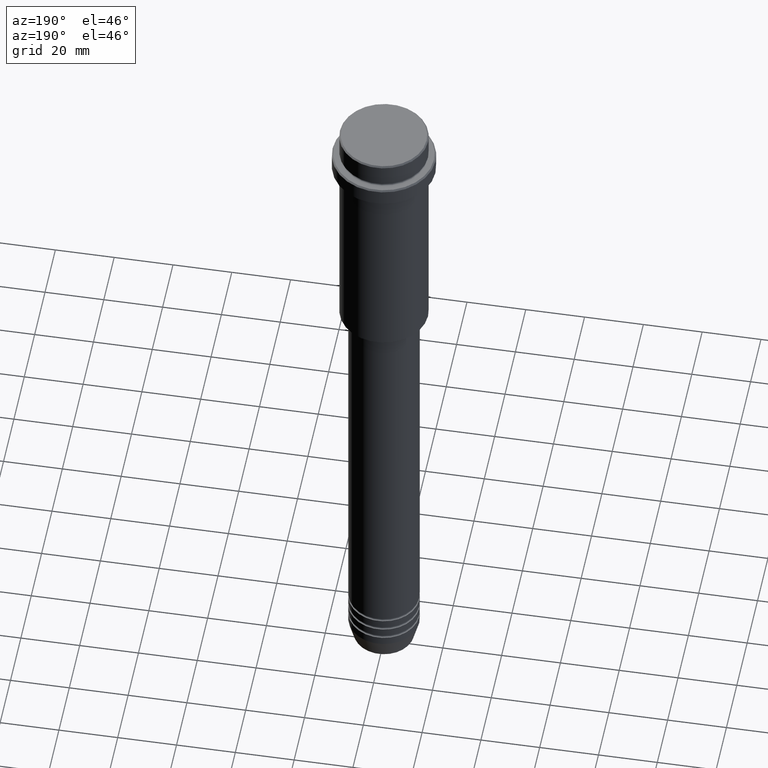
[diagram: clean part render]
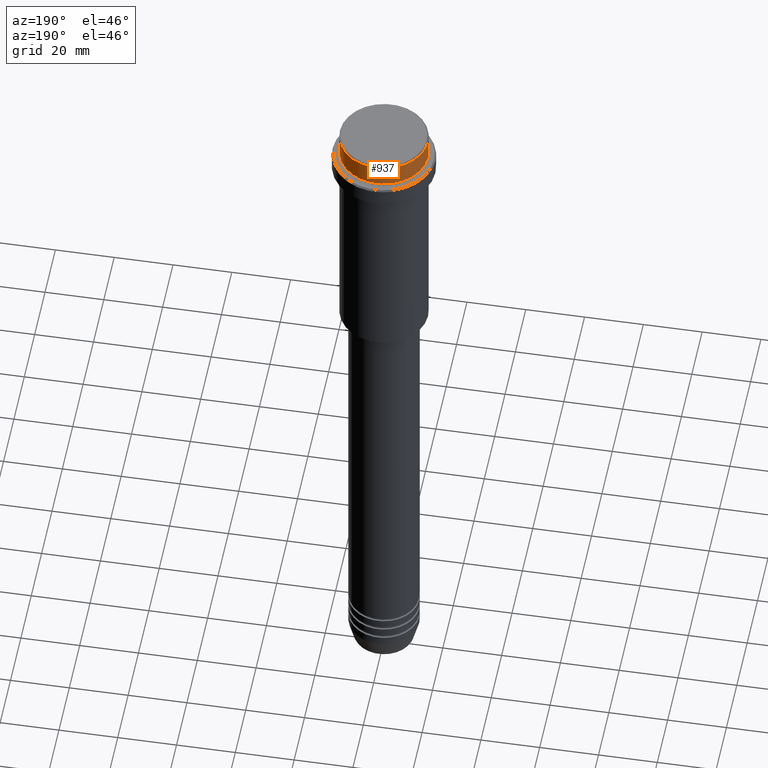
[diagram: same view with one face highlighted and labeled with its STEP entity id]
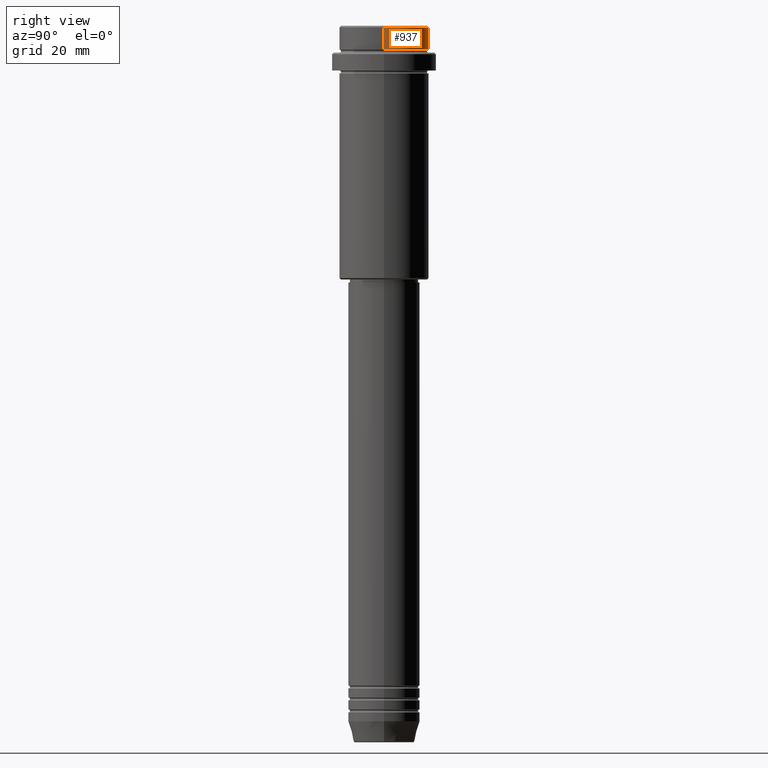
[diagram: same view with one face highlighted and labeled with its STEP entity id]
A machine part, auxiliary view. The second image highlights one B-rep face of the part: STEP entity #937.
A second angle (right view) of the same face is appended — the face is thin or edge-on in the first view.
In plain terms, the highlighted cylindrical surface (partial cylindrical patch) has radius 15 mm, axis along (-0, -0, 1).
Its self-contained STEP definition (entity closure, byte-faithful):
#15 = CIRCLE ( 'NONE', #422, 15.00000000000000000 ) ;
#21 = VERTEX_POINT ( 'NONE', #595 ) ;
#101 = CARTESIAN_POINT ( 'NONE',  ( 0.000000000000000000, 0.000000000000000000, -0.4999999999999831246 ) ) ;
#124 = DIRECTION ( 'NONE',  ( 1.000000000000000000, 0.000000000000000000, 0.000000000000000000 ) ) ;
#176 = CYLINDRICAL_SURFACE ( 'NONE', #811, 15.00000000000000000 ) ;
#230 = VERTEX_POINT ( 'NONE', #461 ) ;
#314 = LINE ( 'NONE', #750, #815 ) ;
#373 = CARTESIAN_POINT ( 'NONE',  ( 0.000000000000000000, 0.000000000000000000, 0.000000000000000000 ) ) ;
#382 = DIRECTION ( 'NONE',  ( 1.000000000000000000, 0.000000000000000000, 0.000000000000000000 ) ) ;
#391 = ORIENTED_EDGE ( 'NONE', *, *, #1397, .T. ) ;
#422 = AXIS2_PLACEMENT_3D ( 'NONE', #871, #903, #124 ) ;
#461 = CARTESIAN_POINT ( 'NONE',  ( 15.00000000000000000, 0.000000000000000000, -7.999999999999998224 ) ) ;
#481 = DIRECTION ( 'NONE',  ( -0.000000000000000000, -0.000000000000000000, 1.000000000000000000 ) ) ;
#513 = CIRCLE ( 'NONE', #719, 15.00000000000000000 ) ;
#541 = CARTESIAN_POINT ( 'NONE',  ( 15.00000000000000000, 0.000000000000000000, 0.000000000000000000 ) ) ;
#595 = CARTESIAN_POINT ( 'NONE',  ( -15.00000000000000000, 1.836970198721029589E-15, -7.999999999999998224 ) ) ;
#605 = CARTESIAN_POINT ( 'NONE',  ( -15.00000000000000000, 1.836970198721029589E-15, -0.4999999999999831246 ) ) ;
#719 = AXIS2_PLACEMENT_3D ( 'NONE', #101, #1181, #1290 ) ;
#747 = EDGE_CURVE ( 'NONE', #230, #21, #15, .T. ) ;
#750 = CARTESIAN_POINT ( 'NONE',  ( -15.00000000000000000, 1.836970198721029589E-15, 0.000000000000000000 ) ) ;
#779 = ORIENTED_EDGE ( 'NONE', *, *, #1150, .F. ) ;
#811 = AXIS2_PLACEMENT_3D ( 'NONE', #373, #481, #382 ) ;
#813 = EDGE_LOOP ( 'NONE', ( #1098, #391, #819, #779 ) ) ;
#815 = VECTOR ( 'NONE', #1273, 1000.000000000000000 ) ;
#819 = ORIENTED_EDGE ( 'NONE', *, *, #1030, .T. ) ;
#857 = VECTOR ( 'NONE', #1099, 1000.000000000000000 ) ;
#871 = CARTESIAN_POINT ( 'NONE',  ( 0.000000000000000000, 0.000000000000000000, -7.999999999999998224 ) ) ;
#903 = DIRECTION ( 'NONE',  ( -0.000000000000000000, -0.000000000000000000, 1.000000000000000000 ) ) ;
#937 = ADVANCED_FACE ( 'NONE', ( #1028 ), #176, .T. ) ;
#948 = VERTEX_POINT ( 'NONE', #605 ) ;
#989 = LINE ( 'NONE', #541, #857 ) ;
#1028 = FACE_OUTER_BOUND ( 'NONE', #813, .T. ) ;
#1030 = EDGE_CURVE ( 'NONE', #948, #1394, #513, .T. ) ;
#1098 = ORIENTED_EDGE ( 'NONE', *, *, #747, .T. ) ;
#1099 = DIRECTION ( 'NONE',  ( -0.000000000000000000, -0.000000000000000000, 1.000000000000000000 ) ) ;
#1150 = EDGE_CURVE ( 'NONE', #230, #1394, #989, .T. ) ;
#1181 = DIRECTION ( 'NONE',  ( 0.000000000000000000, 0.000000000000000000, -1.000000000000000000 ) ) ;
#1188 = CARTESIAN_POINT ( 'NONE',  ( 15.00000000000000000, 0.000000000000000000, -0.4999999999999831246 ) ) ;
#1273 = DIRECTION ( 'NONE',  ( -0.000000000000000000, -0.000000000000000000, 1.000000000000000000 ) ) ;
#1290 = DIRECTION ( 'NONE',  ( 1.000000000000000000, 0.000000000000000000, 0.000000000000000000 ) ) ;
#1394 = VERTEX_POINT ( 'NONE', #1188 ) ;
#1397 = EDGE_CURVE ( 'NONE', #21, #948, #314, .T. ) ;